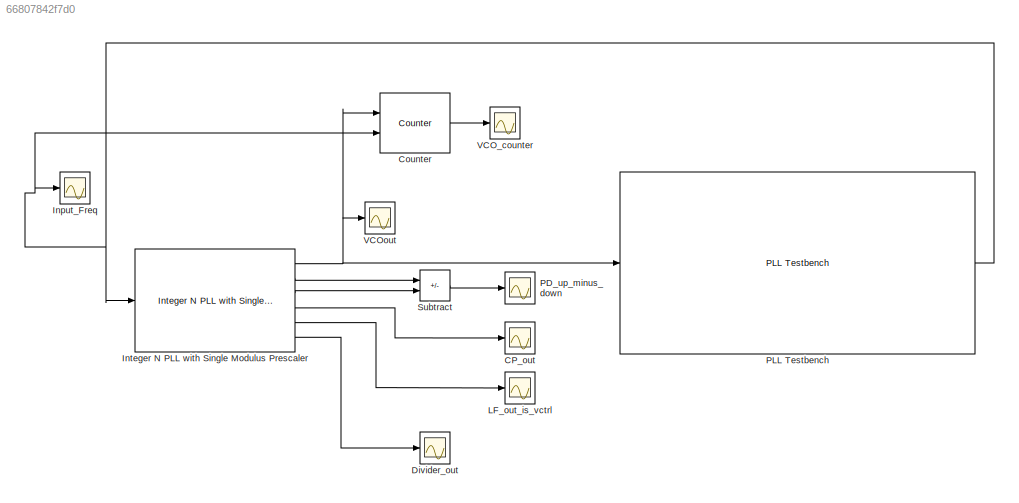
MODEL slx_66807842f7d0
KIND model
CONFIG AbsTol = auto
CONFIG EnableMultiTasking = off
CONFIG FixedStep = auto
CONFIG MaxStep = auto
CONFIG MinStep = auto
CONFIG RelTol = 1e-3
CONFIG SampleTimeConstraint = Unconstrained
CONFIG SolverName = VariableStepAuto
CONFIG StartTime = 0.0
CONFIG StopTime = 15e-06
WORKSPACE source: mxarray member
WORKSPACE Frequency_6 = 3200000000.02
WORKSPACE LockTime_6 = 1.1675e-06
WORKSPACE PnFrequencyOffset_6 = [100000 1000000 3000000 10000000]
WORKSPACE TargetFrequency_6 = 3210000000
WORKSPACE TargetLockTime_6 = 3e-06
WORKSPACE TargetPhaseNoise_6 = [-108 -134 -145 -154]
WORKSPACE uniqueStringPll_6 = '14_1886'
WORKSPACE uniqueString_6 = '81_4724'
BLOCK [Scope] CP_out
  Floating = off
  NumInputPorts = 1
  Ports = [1]
  ScopeSpecificationString = Simulink.scopes.TimeScopeBlockCfg('CurrentConfiguration', extmgr.ConfigurationSet(extmgr.Configuration('Core','General UI',true),extmgr.Configuration('Core','Source UI',true),extmgr.Configuration('Sources','WiredSimulink',true,'DataLoggingVariableName','ScopeData4'),extmgr.Configuration('Visuals','Time Domain',true,'SerializedDisplays',{struct('MinYLimReal','-0.000025','MaxYLimReal','0.000025','YL...<+1547ch>
BLOCK [Reference] Counter  REF=dspswit3/Counter
  Ports = [2, 1]
  SourceBlock = dspswit3/Counter
  SourceProductBaseCode = DS
  SourceType = Counter
BLOCK [Scope] Divider_out
  Floating = off
  NumInputPorts = 1
  Ports = [1]
  ScopeSpecificationString = Simulink.scopes.TimeScopeBlockCfg('CurrentConfiguration', extmgr.ConfigurationSet(extmgr.Configuration('Core','General UI',true),extmgr.Configuration('Core','Source UI',true),extmgr.Configuration('Sources','WiredSimulink',true,'DataLoggingVariableName','ScopeData5'),extmgr.Configuration('Visuals','Time Domain',true,'SerializedDisplays',{struct('MinYLimReal','-0.125','MaxYLimReal','1.125','YLabelRe...<+1528ch>
BLOCK [Scope] Input_Freq
  Floating = off
  NumInputPorts = 1
  Ports = [1]
  ScopeSpecificationString = Simulink.scopes.TimeScopeBlockCfg('CurrentConfiguration', extmgr.ConfigurationSet(extmgr.Configuration('Core','General UI',true),extmgr.Configuration('Core','Source UI',true),extmgr.Configuration('Sources','WiredSimulink',true,'DataLoggingVariableName','ScopeData2'),extmgr.Configuration('Visuals','Time Domain',true,'SerializedDisplays',{struct('MinYLimReal','-0.125','MaxYLimReal','1.125','YLabelRe...<+1799ch>
BLOCK [Reference] Integer N PLL with Single Modulus Prescaler  REF=msbPllArchitectures/Integer N PLL with Single Modulus Prescaler
  Ports = [1, 6]
  SourceBlock = msbPllArchitectures/Integer N PLL with Single Modulus Prescaler
  SourceProductBaseCode = AM
  SourceType = IntegerNPLLwithSingleModulusPrescaler
BLOCK [Scope] LF_out_is_vctrl
  Floating = off
  NumInputPorts = 1
  Ports = [1]
  ScopeSpecificationString = Simulink.scopes.TimeScopeBlockCfg('CurrentConfiguration', extmgr.ConfigurationSet(extmgr.Configuration('Core','General UI',true),extmgr.Configuration('Core','Source UI',true),extmgr.Configuration('Sources','WiredSimulink',true),extmgr.Configuration('Visuals','Time Domain',true,'SerializedDisplays',{struct('MinYLimReal','-1.67452','MaxYLimReal','2.40927','YLabelReal','','MinYLimMag','0.00000','MaxY...<+1470ch>
BLOCK [Scope] PD_up_minus_down
  Floating = off
  NumInputPorts = 1
  Ports = [1]
  ScopeSpecificationString = Simulink.scopes.TimeScopeBlockCfg('CurrentConfiguration', extmgr.ConfigurationSet(extmgr.Configuration('Core','General UI',true),extmgr.Configuration('Core','Source UI',true),extmgr.Configuration('Sources','WiredSimulink',true,'DataLoggingVariableName','ScopeData3'),extmgr.Configuration('Visuals','Time Domain',true,'SerializedDisplays',{struct('MinYLimReal','-1.25','MaxYLimReal','1.25','YLabelReal...<+1450ch>
BLOCK [Reference] PLL Testbench  REF=msbPllMeasurements/PLL Testbench
  Ports = [1, 1]
  SourceBlock = msbPllMeasurements/PLL Testbench
  SourceProductBaseCode = AM
  SourceType = PLLTestbench
BLOCK [Sum] Subtract
  IconShape = rectangular
  Inputs = +-
  Ports = [2, 1]
BLOCK [Scope] VCO_counter
  Floating = off
  NumInputPorts = 1
  Ports = [1]
  ScopeSpecificationString = Simulink.scopes.TimeScopeBlockCfg('CurrentConfiguration', extmgr.ConfigurationSet(extmgr.Configuration('Core','General UI',true),extmgr.Configuration('Core','Source UI',true),extmgr.Configuration('Sources','WiredSimulink',true,'DataLoggingVariableName','ScopeData6'),extmgr.Configuration('Visuals','Time Domain',true,'SerializedDisplays',{struct('MinYLimReal','-10.51299','MaxYLimReal','136.68214','Y...<+1544ch>
BLOCK [Scope] VCOout
  Floating = off
  NumInputPorts = 1
  Ports = [1]
  ScopeSpecificationString = Simulink.scopes.TimeScopeBlockCfg('CurrentConfiguration', extmgr.ConfigurationSet(extmgr.Configuration('Core','General UI',true),extmgr.Configuration('Core','Source UI',true),extmgr.Configuration('Sources','WiredSimulink',true,'DataLoggingVariableName','ScopeData1'),extmgr.Configuration('Visuals','Time Domain',true,'SerializedDisplays',{struct('MinYLimReal','-0.125','MaxYLimReal','1.125','YLabelRe...<+1523ch>
LINE Counter:1 -> VCO_counter:1
NET Integer N PLL with Single Modulus Prescaler:1 -> Counter:1, PLL Testbench:1, VCOout:1
LINE Integer N PLL with Single Modulus Prescaler:2 -> Subtract:1
LINE Integer N PLL with Single Modulus Prescaler:3 -> Subtract:2
LINE Integer N PLL with Single Modulus Prescaler:4 -> CP_out:1
LINE Integer N PLL with Single Modulus Prescaler:5 -> LF_out_is_vctrl:1
LINE Integer N PLL with Single Modulus Prescaler:6 -> Divider_out:1
NET PLL Testbench:1 -> Counter:2, Input_Freq:1, Integer N PLL with Single Modulus Prescaler:1
LINE Subtract:1 -> PD_up_minus_down:1
note: NET lines group one-source signal fan-out (src -> all destinations, sorted); 1:1 wires keep LINE
